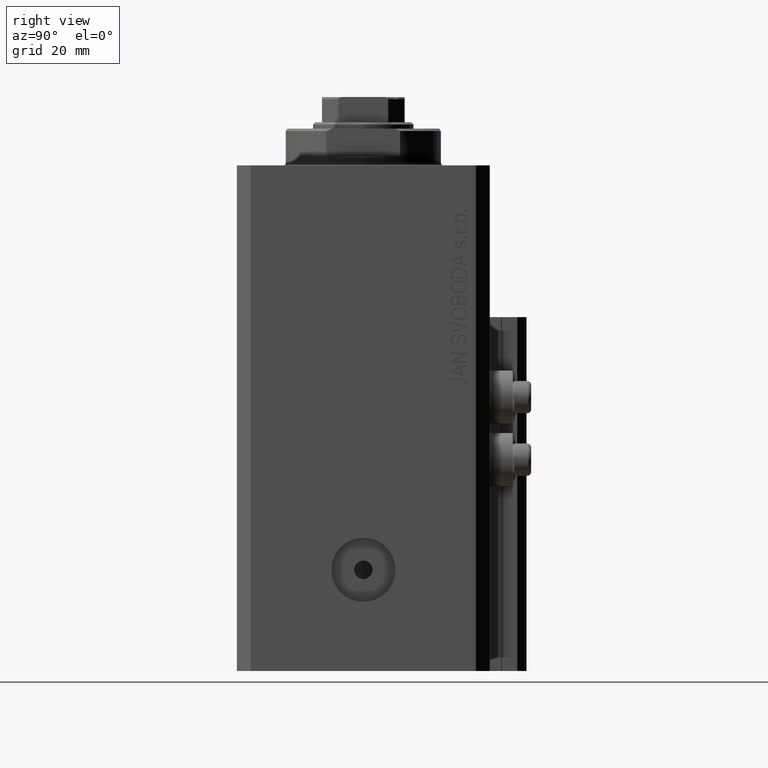
[diagram: clean part render]
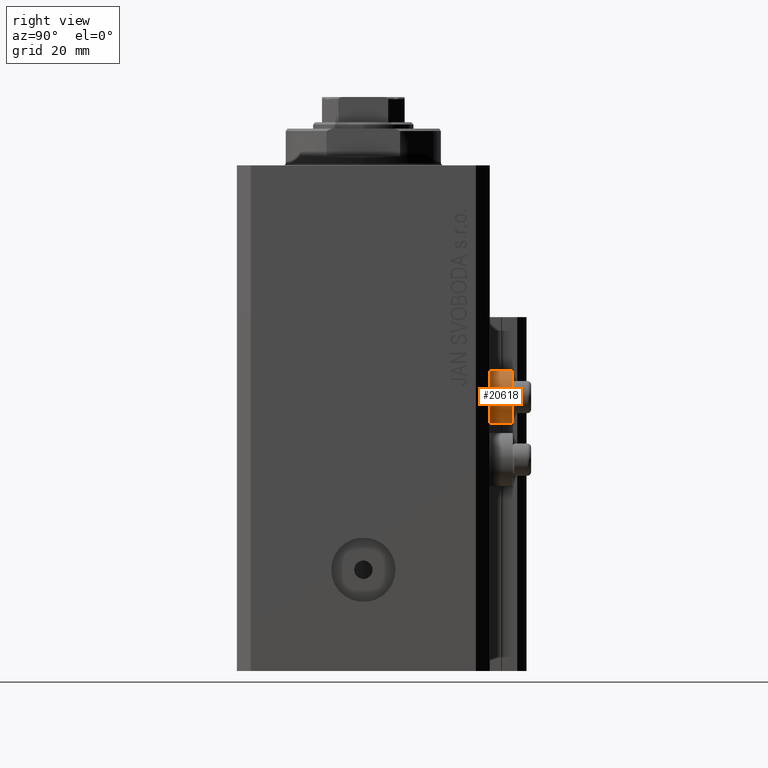
[diagram: same view with one face highlighted and labeled with its STEP entity id]
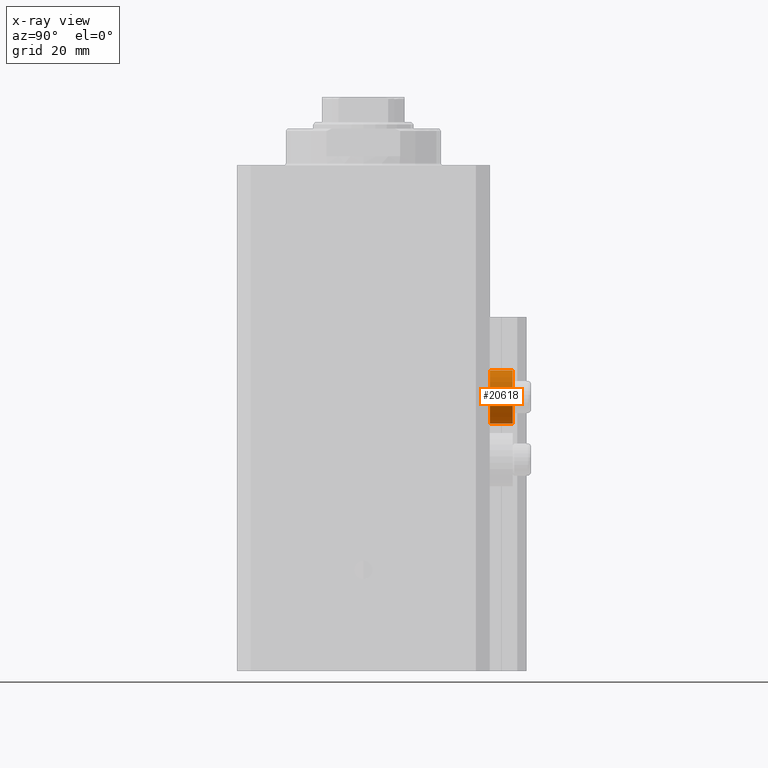
[diagram: x-ray of the same camera — body ghosted, the highlighted face saturated]
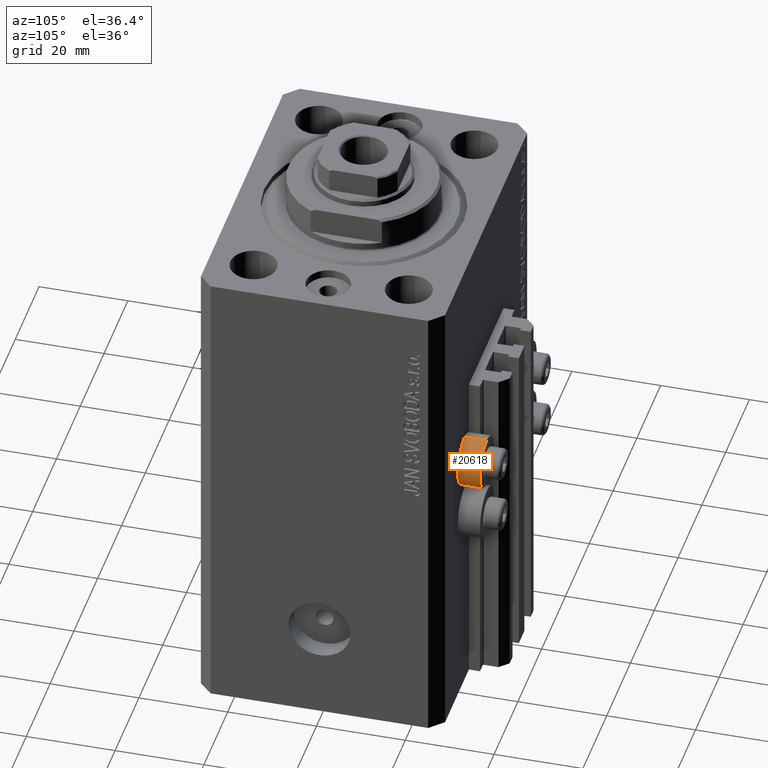
[diagram: same view with one face highlighted and labeled with its STEP entity id]
A machine part, right view. The second image highlights one B-rep face of the part: STEP entity #20618.
The next image is the same camera in x-ray: the body ghosted, the highlighted face saturated — about 0% of this face is hidden behind the body in this view.
A second angle (auxiliary view) of the same face is appended — the face is thin or edge-on in the first view.
In plain terms, the highlighted cylindrical surface (edge-blend (fillet) strip) has radius 5.8 mm, axis along (0, 1, 0).
Its self-contained STEP definition (entity closure, byte-faithful):
#26 = DIRECTION ( 'NONE',  ( 0.000000000000000000, 0.000000000000000000, 1.000000000000000000 ) ) ;
#620 = CARTESIAN_POINT ( 'NONE',  ( 18.00000000000000355, 32.49999999996100541, -44.60000000000000142 ) ) ;
#1063 = ORIENTED_EDGE ( 'NONE', *, *, #36901, .F. ) ;
#2021 = ORIENTED_EDGE ( 'NONE', *, *, #29316, .T. ) ;
#3288 = FACE_OUTER_BOUND ( 'NONE', #39391, .T. ) ;
#5247 = VERTEX_POINT ( 'NONE', #9679 ) ;
#5498 = DIRECTION ( 'NONE',  ( -0.000000000000000000, -1.000000000000000000, -0.000000000000000000 ) ) ;
#9679 = CARTESIAN_POINT ( 'NONE',  ( 18.00000000000000355, 32.49999999996100541, -44.60000000000000142 ) ) ;
#10498 = CARTESIAN_POINT ( 'NONE',  ( 18.00000000000000355, 32.49999999996100541, -56.20000000000000284 ) ) ;
#12512 = ORIENTED_EDGE ( 'NONE', *, *, #35836, .T. ) ;
#13314 = DIRECTION ( 'NONE',  ( 0.000000000000000000, 1.000000000000000000, 0.000000000000000000 ) ) ;
#14034 = EDGE_CURVE ( 'NONE', #15209, #5247, #33586, .T. ) ;
#14131 = CARTESIAN_POINT ( 'NONE',  ( 18.00000000000000355, 27.50000000000000000, -56.20000000000000284 ) ) ;
#14353 = DIRECTION ( 'NONE',  ( -0.000000000000000000, -1.000000000000000000, -0.000000000000000000 ) ) ;
#15071 = AXIS2_PLACEMENT_3D ( 'NONE', #35770, #13314, #35541 ) ;
#15209 = VERTEX_POINT ( 'NONE', #35959 ) ;
#15243 = ORIENTED_EDGE ( 'NONE', *, *, #14034, .F. ) ;
#18444 = CIRCLE ( 'NONE', #45125, 5.799999999999999822 ) ;
#18877 = CARTESIAN_POINT ( 'NONE',  ( 18.00000000000000355, 32.49999999996100541, -50.39999999999999858 ) ) ;
#20618 = ADVANCED_FACE ( 'NONE', ( #3288 ), #28130, .T. ) ;
#22705 = CARTESIAN_POINT ( 'NONE',  ( 18.00000000000000355, 27.50000000000000000, -50.39999999999999858 ) ) ;
#25091 = DIRECTION ( 'NONE',  ( 0.000000000000000000, 1.000000000000000000, 0.000000000000000000 ) ) ;
#26910 = AXIS2_PLACEMENT_3D ( 'NONE', #22705, #5498, #37271 ) ;
#28130 = CYLINDRICAL_SURFACE ( 'NONE', #15071, 5.799999999999999822 ) ;
#29316 = EDGE_CURVE ( 'NONE', #36699, #40873, #32262, .T. ) ;
#30231 = DIRECTION ( 'NONE',  ( 0.000000000000000000, 1.000000000000000000, 0.000000000000000000 ) ) ;
#30687 = CIRCLE ( 'NONE', #26910, 5.799999999999999822 ) ;
#32262 = LINE ( 'NONE', #10498, #34264 ) ;
#33586 = LINE ( 'NONE', #620, #45080 ) ;
#34264 = VECTOR ( 'NONE', #25091, 1000.000000000000000 ) ;
#35541 = DIRECTION ( 'NONE',  ( 0.000000000000000000, 0.000000000000000000, 1.000000000000000000 ) ) ;
#35770 = CARTESIAN_POINT ( 'NONE',  ( 18.00000000000000355, 32.49999999996100541, -50.39999999999999858 ) ) ;
#35836 = EDGE_CURVE ( 'NONE', #40873, #5247, #18444, .T. ) ;
#35959 = CARTESIAN_POINT ( 'NONE',  ( 18.00000000000000355, 27.50000000000000000, -44.60000000000000142 ) ) ;
#36699 = VERTEX_POINT ( 'NONE', #14131 ) ;
#36901 = EDGE_CURVE ( 'NONE', #36699, #15209, #30687, .T. ) ;
#37271 = DIRECTION ( 'NONE',  ( 0.000000000000000000, 0.000000000000000000, 1.000000000000000000 ) ) ;
#39391 = EDGE_LOOP ( 'NONE', ( #1063, #2021, #12512, #15243 ) ) ;
#39888 = CARTESIAN_POINT ( 'NONE',  ( 18.00000000000000355, 32.49999999996100541, -56.20000000000000284 ) ) ;
#40873 = VERTEX_POINT ( 'NONE', #39888 ) ;
#45080 = VECTOR ( 'NONE', #30231, 1000.000000000000000 ) ;
#45125 = AXIS2_PLACEMENT_3D ( 'NONE', #18877, #14353, #26 ) ;